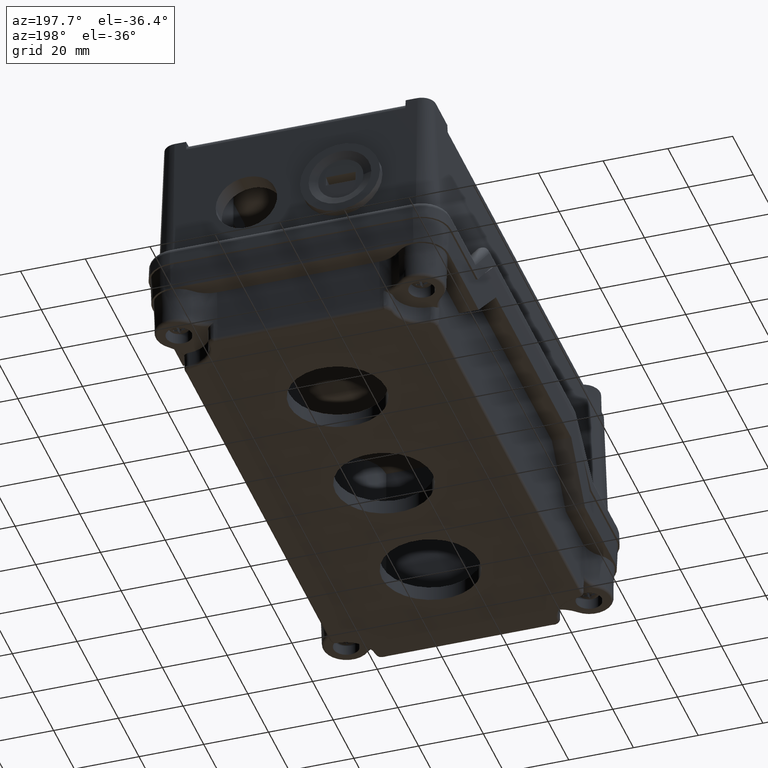
[diagram: clean part render]
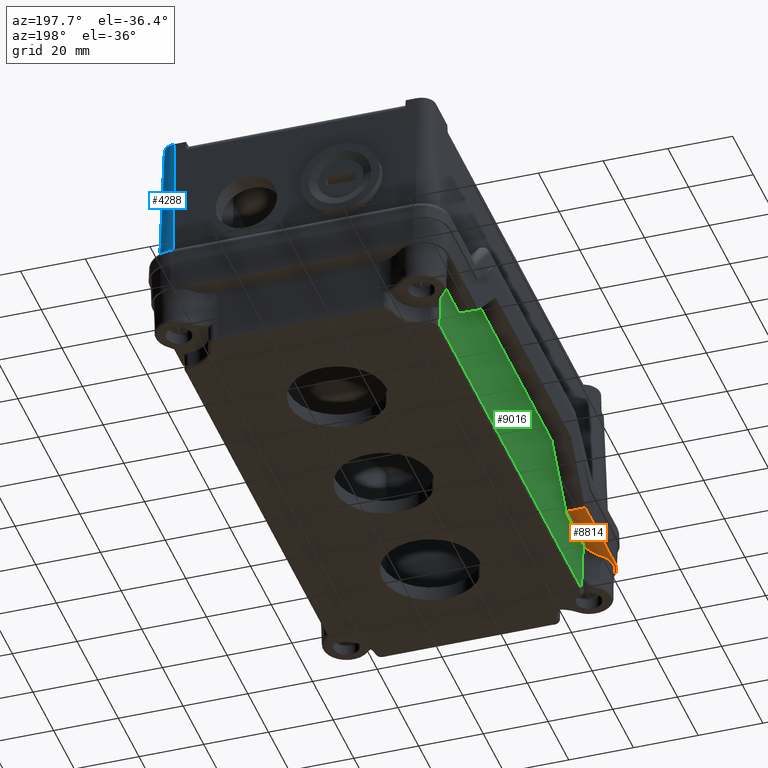
[diagram: same view with three faces highlighted in distinct colors, each labeled with its STEP entity id]
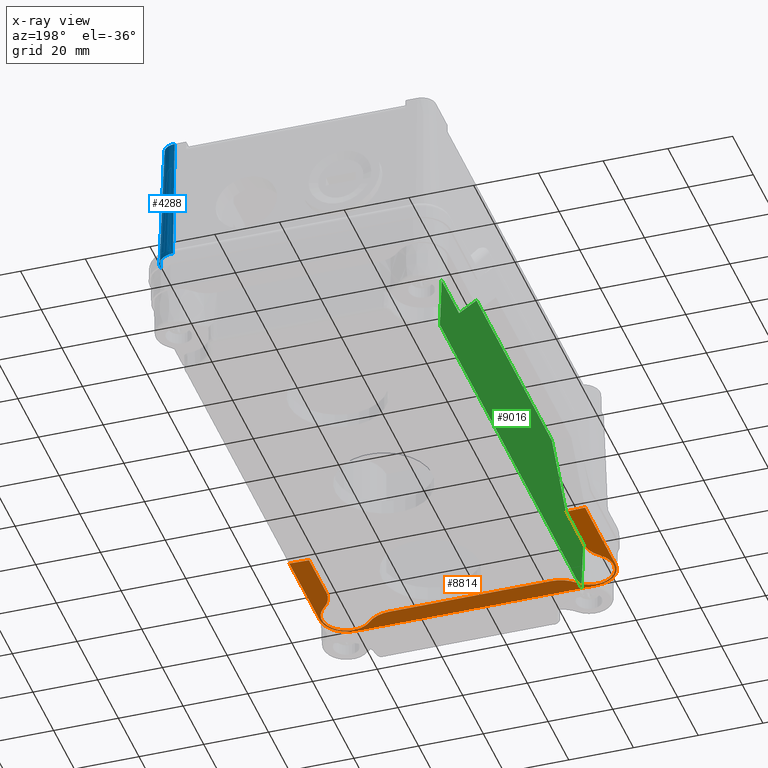
[diagram: x-ray of the same camera — body ghosted, the three highlighted faces saturated]
A machine part, auxiliary view with three faces highlighted in distinct colors.
The next image is the same camera in x-ray (body ghosted, the three faces saturated) — at least one of them is partly hidden behind the body in this view.
Their STEP definitions:

[orange] entity #8814 — the highlighted planar face has unit normal (0, 0, -1).
#7236=CARTESIAN_POINT('',(80.458446384967729,-61.740808886032312,23.499999999999986));
#7237=VERTEX_POINT('',#7236);
#7244=CARTESIAN_POINT('',(77.462640443142703,-54.857181445620959,23.499999999999986));
#7245=VERTEX_POINT('',#7244);
#7246=CARTESIAN_POINT('',(86.868987361783041,-54.857181445620959,23.499999999999979));
#7247=DIRECTION('',(0.0,0.0,-1.0));
#7248=DIRECTION('',(-1.0,0.0,0.0));
#7249=AXIS2_PLACEMENT_3D('',#7246,#7247,#7248);
#7250=CIRCLE('',#7249,9.406346918640217);
#7251=EDGE_CURVE('',#7237,#7245,#7250,.T.);
#7425=CARTESIAN_POINT('',(62.842565090986710,-69.477256797777059,23.499999999999986));
#7426=VERTEX_POINT('',#7425);
#7433=CARTESIAN_POINT('',(69.726192531398141,-72.473062739601929,23.499999999999986));
#7434=VERTEX_POINT('',#7433);
#7435=CARTESIAN_POINT('',(62.842565090986710,-78.883603716417312,23.499999999999979));
#7436=DIRECTION('',(0.0,0.0,-1.000000000000000));
#7437=DIRECTION('',(0.731806672659534,0.681512284446129,0.0));
#7438=AXIS2_PLACEMENT_3D('',#7435,#7436,#7437);
#7439=CIRCLE('',#7438,9.406346918640251);
#7440=EDGE_CURVE('',#7426,#7434,#7439,.T.);
#7458=CARTESIAN_POINT('',(12.723991961410803,-69.477256797777017,23.499999999999986));
#7459=VERTEX_POINT('',#7458);
#7466=CARTESIAN_POINT('',(12.723991961410803,-69.477256797777017,23.499999999999986));
#7467=DIRECTION('',(1.0,0.0,0.0));
#7468=VECTOR('',#7467,50.118573129575907);
#7469=LINE('',#7466,#7468);
#7470=EDGE_CURVE('',#7459,#7426,#7469,.T.);
#7482=CARTESIAN_POINT('',(5.840364520999345,-72.473062739601843,23.499999999999986));
#7483=VERTEX_POINT('',#7482);
#7490=CARTESIAN_POINT('',(12.723991961410805,-78.883603716417213,23.499999999999979));
#7491=DIRECTION('',(0.0,0.0,-1.0));
#7492=DIRECTION('',(0.0,1.0,0.0));
#7493=AXIS2_PLACEMENT_3D('',#7490,#7491,#7492);
#7494=CIRCLE('',#7493,9.406346918640333);
#7495=EDGE_CURVE('',#7483,#7459,#7494,.T.);
#7664=CARTESIAN_POINT('',(-1.896083390745133,-54.857181445621052,23.499999999999986));
#7665=VERTEX_POINT('',#7664);
#7672=CARTESIAN_POINT('',(-4.891889332570096,-61.740808886032418,23.499999999999986));
#7673=VERTEX_POINT('',#7672);
#7674=CARTESIAN_POINT('',(-11.302430309385379,-54.857181445621052,23.499999999999979));
#7675=DIRECTION('',(0.0,0.0,-1.0));
#7676=DIRECTION('',(0.681512284446128,-0.731806672659535,0.0));
#7677=AXIS2_PLACEMENT_3D('',#7674,#7675,#7676);
#7678=CIRCLE('',#7677,9.406346918640246);
#7679=EDGE_CURVE('',#7665,#7673,#7678,.T.);
#7730=CARTESIAN_POINT('',(-1.896083390745160,-37.982684854070662,23.499999999999979));
#7731=VERTEX_POINT('',#7730);
#7738=CARTESIAN_POINT('',(-1.896083390745160,-37.982684854070662,23.499999999999979));
#7739=DIRECTION('',(0.0,-1.0,0.0));
#7740=VECTOR('',#7739,16.874496591550390);
#7741=LINE('',#7738,#7740);
#7742=EDGE_CURVE('',#7731,#7665,#7741,.T.);
#8711=CARTESIAN_POINT('',(-7.896083390745197,-37.773415432838291,23.499999999999979));
#8712=VERTEX_POINT('',#8711);
#8713=CARTESIAN_POINT('',(-1.896083390745160,-37.982684854070662,23.499999999999979));
#8714=DIRECTION('',(-0.999392308678630,0.034857041670210,0.0));
#8715=VECTOR('',#8714,6.003648365008012);
#8716=LINE('',#8713,#8715);
#8717=EDGE_CURVE('',#7731,#8712,#8716,.T.);
#8730=CARTESIAN_POINT('',(37.783278526198764,13.702105119166937,23.499999999999979));
#8731=DIRECTION('',(0.0,0.0,1.0));
#8732=DIRECTION('',(1.0,0.0,0.0));
#8733=AXIS2_PLACEMENT_3D('',#8730,#8731,#8732);
#8734=PLANE('',#8733);
#8735=ORIENTED_EDGE('',*,*,#8717,.T.);
#8736=CARTESIAN_POINT('',(-7.896083390745168,-67.297894880833070,23.499999999999979));
#8737=VERTEX_POINT('',#8736);
#8738=CARTESIAN_POINT('',(-7.896083390745168,-67.297894880833070,23.499999999999979));
#8739=DIRECTION('',(0.0,1.0,0.0));
#8740=VECTOR('',#8739,29.524479447994779);
#8741=LINE('',#8738,#8740);
#8742=EDGE_CURVE('',#8737,#8712,#8741,.T.);
#8743=ORIENTED_EDGE('',*,*,#8742,.F.);
#8744=CARTESIAN_POINT('',(0.283278526198743,-75.477256797777002,23.499999999999979));
#8745=VERTEX_POINT('',#8744);
#8746=CARTESIAN_POINT('',(0.283278526198749,-67.297894880833098,23.499999999999979));
#8747=DIRECTION('',(0.0,0.0,-1.0));
#8748=DIRECTION('',(-1.0,0.0,0.0));
#8749=AXIS2_PLACEMENT_3D('',#8746,#8747,#8748);
#8750=CIRCLE('',#8749,8.179361916943917);
#8751=EDGE_CURVE('',#8745,#8737,#8750,.T.);
#8752=ORIENTED_EDGE('',*,*,#8751,.F.);
#8753=CARTESIAN_POINT('',(75.283278526198785,-75.477256797776988,23.499999999999979));
#8754=VERTEX_POINT('',#8753);
#8755=CARTESIAN_POINT('',(75.283278526198785,-75.477256797776988,23.499999999999979));
#8756=DIRECTION('',(-1.0,0.0,0.0));
#8757=VECTOR('',#8756,75.000000000000043);
#8758=LINE('',#8755,#8757);
#8759=EDGE_CURVE('',#8754,#8745,#8758,.T.);
#8760=ORIENTED_EDGE('',*,*,#8759,.F.);
#8761=CARTESIAN_POINT('',(83.462640443142732,-67.297894880833113,23.499999999999979));
#8762=VERTEX_POINT('',#8761);
#8763=CARTESIAN_POINT('',(75.283278526198799,-67.297894880833070,23.499999999999979));
#8764=DIRECTION('',(0.0,0.0,-1.0));
#8765=DIRECTION('',(0.0,-1.0,0.0));
#8766=AXIS2_PLACEMENT_3D('',#8763,#8764,#8765);
#8767=CIRCLE('',#8766,8.179361916943915);
#8768=EDGE_CURVE('',#8762,#8754,#8767,.T.);
#8769=ORIENTED_EDGE('',*,*,#8768,.F.);
#8770=CARTESIAN_POINT('',(83.462640443142732,-37.773415432838263,23.499999999999979));
#8771=VERTEX_POINT('',#8770);
#8772=CARTESIAN_POINT('',(83.462640443142732,-37.773415432838263,23.499999999999979));
#8773=DIRECTION('',(0.0,-1.0,0.0));
#8774=VECTOR('',#8773,29.524479447994850);
#8775=LINE('',#8772,#8774);
#8776=EDGE_CURVE('',#8771,#8762,#8775,.T.);
#8777=ORIENTED_EDGE('',*,*,#8776,.F.);
#8778=CARTESIAN_POINT('',(77.462640443142703,-37.982684854070634,23.499999999999979));
#8779=VERTEX_POINT('',#8778);
#8780=CARTESIAN_POINT('',(83.462640443142732,-37.773415432838263,23.499999999999979));
#8781=DIRECTION('',(-0.999392308678630,-0.034857041670210,0.0));
#8782=VECTOR('',#8781,6.003648365008004);
#8783=LINE('',#8780,#8782);
#8784=EDGE_CURVE('',#8771,#8779,#8783,.T.);
#8785=ORIENTED_EDGE('',*,*,#8784,.T.);
#8786=CARTESIAN_POINT('',(77.462640443142703,-54.857181445620959,23.499999999999986));
#8787=DIRECTION('',(0.0,1.0,0.0));
#8788=VECTOR('',#8787,16.874496591550326);
#8789=LINE('',#8786,#8788);
#8790=EDGE_CURVE('',#7245,#8779,#8789,.T.);
#8791=ORIENTED_EDGE('',*,*,#8790,.F.);
#8792=ORIENTED_EDGE('',*,*,#7251,.F.);
#8793=CARTESIAN_POINT('',(75.283278526198799,-67.297894880833070,23.499999999999979));
#8794=DIRECTION('',(0.0,0.0,1.0));
#8795=DIRECTION('',(0.731806672659532,0.681512284446131,0.0));
#8796=AXIS2_PLACEMENT_3D('',#8793,#8794,#8795);
#8797=CIRCLE('',#8796,7.593653081359713);
#8798=EDGE_CURVE('',#7434,#7237,#8797,.T.);
#8799=ORIENTED_EDGE('',*,*,#8798,.F.);
#8800=ORIENTED_EDGE('',*,*,#7440,.F.);
#8801=ORIENTED_EDGE('',*,*,#7470,.F.);
#8802=ORIENTED_EDGE('',*,*,#7495,.F.);
#8803=CARTESIAN_POINT('',(0.283278526198749,-67.297894880833098,23.499999999999979));
#8804=DIRECTION('',(0.0,0.0,1.000000000000000));
#8805=DIRECTION('',(0.681512284446128,-0.731806672659535,0.0));
#8806=AXIS2_PLACEMENT_3D('',#8803,#8804,#8805);
#8807=CIRCLE('',#8806,7.593653081359713);
#8808=EDGE_CURVE('',#7673,#7483,#8807,.T.);
#8809=ORIENTED_EDGE('',*,*,#8808,.F.);
#8810=ORIENTED_EDGE('',*,*,#7679,.F.);
#8811=ORIENTED_EDGE('',*,*,#7742,.F.);
#8812=EDGE_LOOP('',(#8735,#8743,#8752,#8760,#8769,#8777,#8785,#8791,#8792,#8799,#8800,#8801,#8802,#8809,#8810,#8811));
#8813=FACE_OUTER_BOUND('',#8812,.T.);
#8814=ADVANCED_FACE('',(#8813),#8734,.T.);

[blue] entity #4288 — the highlighted conical surface has half-angle 2 deg.
#1900=CARTESIAN_POINT('',(68.885091562884412,148.458310843324310,47.0));
#1901=VERTEX_POINT('',#1900);
#1908=CARTESIAN_POINT('',(68.885091562884412,149.890062392485990,6.000000000000014));
#1909=VERTEX_POINT('',#1908);
#1910=CARTESIAN_POINT('',(68.885091562884412,149.890062392485990,6.000000000000014));
#1911=DIRECTION('',(0.0,-0.034899496702501,0.999390827019096));
#1912=VECTOR('',#1911,41.024991316251679);
#1913=LINE('',#1910,#1912);
#1914=EDGE_CURVE('',#1909,#1901,#1913,.T.);
#3796=CARTESIAN_POINT('',(73.243815396772234,144.099587009436500,47.0));
#3797=VERTEX_POINT('',#3796);
#3806=CARTESIAN_POINT('',(68.885091562884412,144.099587009436500,47.0));
#3807=DIRECTION('',(0.0,0.0,-1.0));
#3808=DIRECTION('',(1.0,0.0,0.0));
#3809=AXIS2_PLACEMENT_3D('',#3806,#3807,#3808);
#3810=CIRCLE('',#3809,4.358723833887827);
#3811=EDGE_CURVE('',#1901,#3797,#3810,.T.);
#4130=CARTESIAN_POINT('',(74.675566945933880,144.099587009436500,6.000000000000014));
#4131=VERTEX_POINT('',#4130);
#4138=CARTESIAN_POINT('',(74.675566945933880,144.099587009436500,6.000000000000014));
#4139=DIRECTION('',(-0.034899496702501,0.0,0.999390827019096));
#4140=VECTOR('',#4139,41.024991316251679);
#4141=LINE('',#4138,#4140);
#4142=EDGE_CURVE('',#4131,#3797,#4141,.T.);
#4171=CARTESIAN_POINT('',(68.885091562884412,144.099587009436500,5.999999999999996));
#4172=DIRECTION('',(0.0,0.0,1.0));
#4173=DIRECTION('',(1.0,0.0,0.0));
#4174=AXIS2_PLACEMENT_3D('',#4171,#4172,#4173);
#4175=CIRCLE('',#4174,5.790475383049476);
#4176=EDGE_CURVE('',#4131,#1909,#4175,.T.);
#4277=CARTESIAN_POINT('',(68.885091562884412,144.099587009436500,46.000000000000007));
#4278=DIRECTION('',(0.0,0.0,-1.0));
#4279=DIRECTION('',(1.0,0.0,0.0));
#4280=AXIS2_PLACEMENT_3D('',#4277,#4278,#4279);
#4281=CONICAL_SURFACE('',#4280,4.393644603379566,2.0);
#4282=ORIENTED_EDGE('',*,*,#4176,.T.);
#4283=ORIENTED_EDGE('',*,*,#1914,.T.);
#4284=ORIENTED_EDGE('',*,*,#3811,.T.);
#4285=ORIENTED_EDGE('',*,*,#4142,.F.);
#4286=EDGE_LOOP('',(#4282,#4283,#4284,#4285));
#4287=FACE_OUTER_BOUND('',#4286,.T.);
#4288=ADVANCED_FACE('',(#4287),#4281,.T.);

[green] entity #9016 — the highlighted planar face has unit normal (-0.9994, 0, -0.0349).
#5000=CARTESIAN_POINT('',(76.902689413995034,82.261391683954855,39.534899496702501));
#5001=VERTEX_POINT('',#5000);
#5009=CARTESIAN_POINT('',(77.462640443142689,82.261391683954855,23.499999999999986));
#5010=VERTEX_POINT('',#5009);
#5011=CARTESIAN_POINT('',(76.902689413995034,82.261391683954855,39.534899496702501));
#5012=DIRECTION('',(0.034899496702499,0.0,-0.999390827019096));
#5013=VECTOR('',#5012,16.044673478272909);
#5014=LINE('',#5011,#5013);
#5015=EDGE_CURVE('',#5001,#5010,#5014,.T.);
#7179=CARTESIAN_POINT('',(76.902689413995006,-54.857181445620959,39.534899496702501));
#7180=VERTEX_POINT('',#7179);
#7221=CARTESIAN_POINT('',(76.902689413995006,-54.857181445620959,39.534899496702501));
#7222=DIRECTION('',(0.0,1.0,0.0));
#7223=VECTOR('',#7222,137.118573129575820);
#7224=LINE('',#7221,#7223);
#7225=EDGE_CURVE('',#7180,#5001,#7224,.T.);
#7244=CARTESIAN_POINT('',(77.462640443142703,-54.857181445620959,23.499999999999986));
#7245=VERTEX_POINT('',#7244);
#7253=CARTESIAN_POINT('',(76.902689413995006,-54.857181445620959,39.534899496702501));
#7254=DIRECTION('',(0.034899496702501,0.0,-0.999390827019096));
#7255=VECTOR('',#7254,16.044673478272912);
#7256=LINE('',#7253,#7255);
#7257=EDGE_CURVE('',#7180,#7245,#7256,.T.);
#8778=CARTESIAN_POINT('',(77.462640443142703,-37.982684854070634,23.499999999999979));
#8779=VERTEX_POINT('',#8778);
#8786=CARTESIAN_POINT('',(77.462640443142703,-54.857181445620959,23.499999999999986));
#8787=DIRECTION('',(0.0,1.0,0.0));
#8788=VECTOR('',#8787,16.874496591550326);
#8789=LINE('',#8786,#8788);
#8790=EDGE_CURVE('',#7245,#8779,#8789,.T.);
#8829=CARTESIAN_POINT('',(77.993759834739450,-22.773415432838178,8.290730578767576));
#8830=VERTEX_POINT('',#8829);
#8837=CARTESIAN_POINT('',(77.993759834739450,-22.773415432838178,8.290730578767576));
#8838=DIRECTION('',(-0.024685188407832,-0.706891307583165,0.706891307583163));
#8839=VECTOR('',#8838,21.515711479367855);
#8840=LINE('',#8837,#8839);
#8841=EDGE_CURVE('',#8830,#8779,#8840,.T.);
#8851=CARTESIAN_POINT('',(77.993759834739478,50.177625671171953,8.290730578767594));
#8852=VERTEX_POINT('',#8851);
#8853=CARTESIAN_POINT('',(77.993759834739478,50.177625671171953,8.290730578767594));
#8854=DIRECTION('',(0.0,-1.0,0.0));
#8855=VECTOR('',#8854,72.951041104010130);
#8856=LINE('',#8853,#8855);
#8857=EDGE_CURVE('',#8852,#8830,#8856,.T.);
#8882=CARTESIAN_POINT('',(77.469948292363256,65.177625671171938,23.290730578767604));
#8883=VERTEX_POINT('',#8882);
#8884=CARTESIAN_POINT('',(77.469948292363256,65.177625671171938,23.290730578767604));
#8885=DIRECTION('',(0.024685188407832,-0.706891307583163,-0.706891307583164));
#8886=VECTOR('',#8885,21.219669614108660);
#8887=LINE('',#8884,#8886);
#8888=EDGE_CURVE('',#8883,#8852,#8887,.T.);
#8913=CARTESIAN_POINT('',(77.462640443142746,65.387150288122413,23.499999999999979));
#8914=VERTEX_POINT('',#8913);
#8921=CARTESIAN_POINT('',(77.462640443142746,65.387150288122413,23.499999999999979));
#8922=DIRECTION('',(0.024670150857967,-0.707322189149572,-0.706460688498166));
#8923=VECTOR('',#8922,0.296222315890288);
#8924=LINE('',#8921,#8923);
#8925=EDGE_CURVE('',#8914,#8883,#8924,.T.);
#8950=CARTESIAN_POINT('',(77.462640443142746,65.387150288122413,23.499999999999979));
#8951=DIRECTION('',(0.0,1.0,0.0));
#8952=VECTOR('',#8951,16.874241395832442);
#8953=LINE('',#8950,#8952);
#8954=EDGE_CURVE('',#8914,#5010,#8953,.T.);
#9000=CARTESIAN_POINT('',(76.868987361782985,-54.857181445620959,40.500000000000000));
#9001=DIRECTION('',(0.999390827019096,-2.589401E-016,0.034899496702501));
#9002=DIRECTION('',(0.0,-1.0,0.0));
#9003=AXIS2_PLACEMENT_3D('',#9000,#9001,#9002);
#9004=PLANE('',#9003);
#9005=ORIENTED_EDGE('',*,*,#7225,.F.);
#9006=ORIENTED_EDGE('',*,*,#7257,.T.);
#9007=ORIENTED_EDGE('',*,*,#8790,.T.);
#9008=ORIENTED_EDGE('',*,*,#8841,.F.);
#9009=ORIENTED_EDGE('',*,*,#8857,.F.);
#9010=ORIENTED_EDGE('',*,*,#8888,.F.);
#9011=ORIENTED_EDGE('',*,*,#8925,.F.);
#9012=ORIENTED_EDGE('',*,*,#8954,.T.);
#9013=ORIENTED_EDGE('',*,*,#5015,.F.);
#9014=EDGE_LOOP('',(#9005,#9006,#9007,#9008,#9009,#9010,#9011,#9012,#9013));
#9015=FACE_OUTER_BOUND('',#9014,.T.);
#9016=ADVANCED_FACE('',(#9015),#9004,.T.);